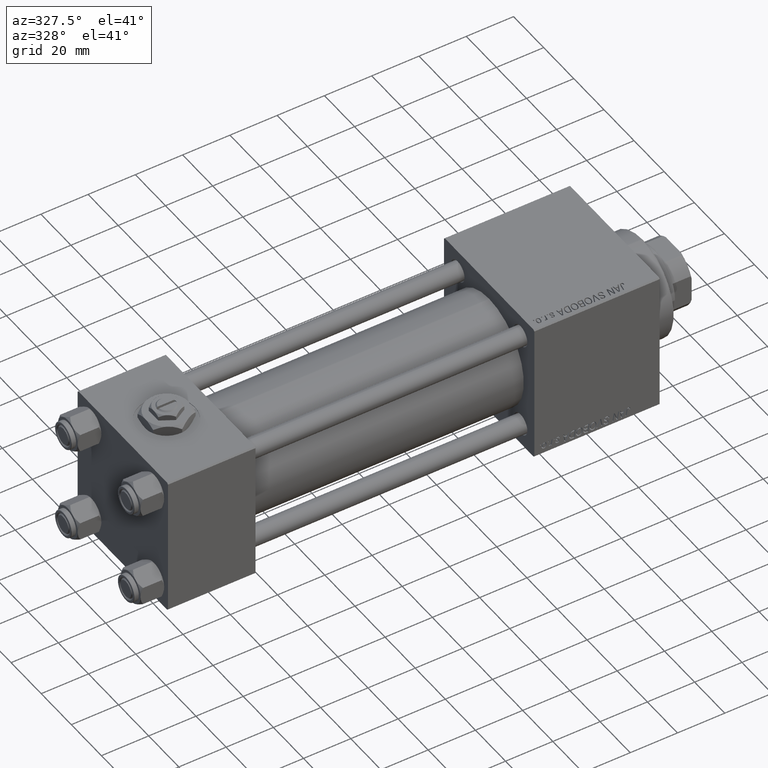
[diagram: clean part render]
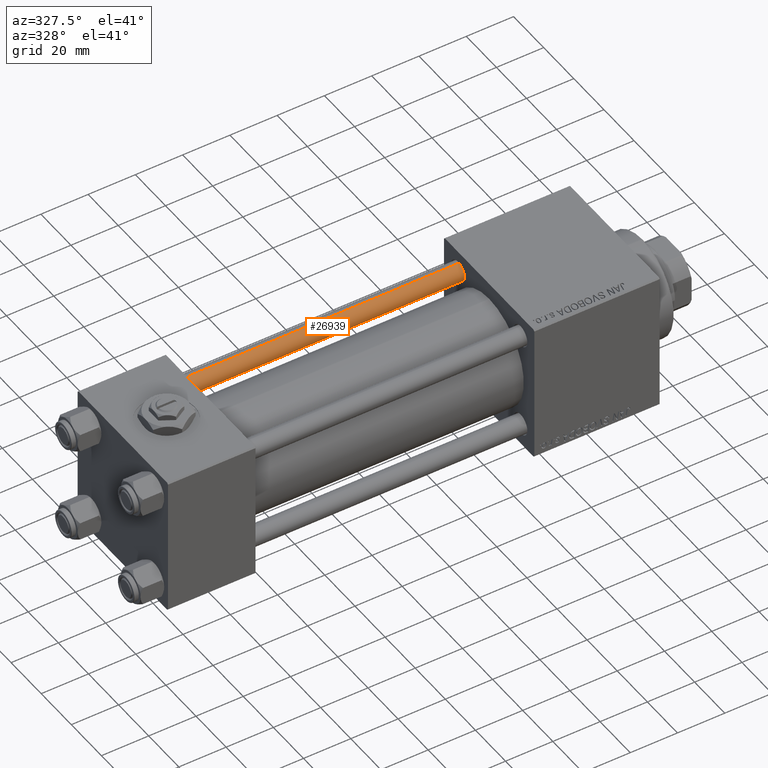
[diagram: same view with one face highlighted and labeled with its STEP entity id]
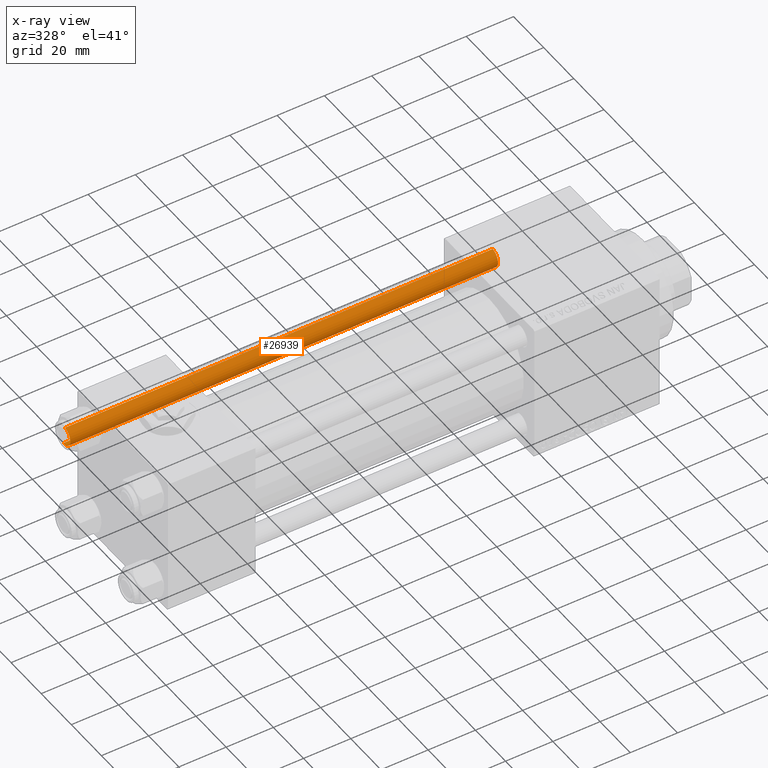
[diagram: x-ray of the same camera — body ghosted, the highlighted face saturated]
A machine part, auxiliary view. The second image highlights one B-rep face of the part: STEP entity #26939.
The next image is the same camera in x-ray: the body ghosted, the highlighted face saturated — about 0% of this face is hidden behind the body in this view.
In plain terms, the highlighted cylindrical surface (edge-blend (fillet) strip) has radius 4 mm, axis along (-1, 0, 0).
Its self-contained STEP definition (entity closure, byte-faithful):
#802 = CIRCLE ( 'NONE', #1671, 4.000000000000000000 ) ;
#1403 = ORIENTED_EDGE ( 'NONE', *, *, #46989, .T. ) ;
#1533 = EDGE_CURVE ( 'NONE', #12685, #27066, #802, .T. ) ;
#1671 = AXIS2_PLACEMENT_3D ( 'NONE', #37809, #21517, #8900 ) ;
#1825 = LINE ( 'NONE', #30196, #22193 ) ;
#5564 = CARTESIAN_POINT ( 'NONE',  ( 4.000000000000000000, 4.898587196589412829E-16, 181.5000000000000284 ) ) ;
#8417 = VERTEX_POINT ( 'NONE', #29666 ) ;
#8532 = CARTESIAN_POINT ( 'NONE',  ( -4.000000000000000000, 0.000000000000000000, 0.4999999999999726885 ) ) ;
#8900 = DIRECTION ( 'NONE',  ( 1.000000000000000000, 0.000000000000000000, 0.000000000000000000 ) ) ;
#12685 = VERTEX_POINT ( 'NONE', #8532 ) ;
#17148 = DIRECTION ( 'NONE',  ( -0.000000000000000000, -0.000000000000000000, -1.000000000000000000 ) ) ;
#17645 = AXIS2_PLACEMENT_3D ( 'NONE', #39300, #27975, #47691 ) ;
#18372 = DIRECTION ( 'NONE',  ( -0.000000000000000000, -0.000000000000000000, -1.000000000000000000 ) ) ;
#19777 = ORIENTED_EDGE ( 'NONE', *, *, #26196, .F. ) ;
#21155 = ORIENTED_EDGE ( 'NONE', *, *, #38931, .T. ) ;
#21517 = DIRECTION ( 'NONE',  ( -0.000000000000000000, -0.000000000000000000, 1.000000000000000000 ) ) ;
#22193 = VECTOR ( 'NONE', #18372, 1000.000000000000000 ) ;
#23443 = VECTOR ( 'NONE', #24534, 1000.000000000000000 ) ;
#24534 = DIRECTION ( 'NONE',  ( -0.000000000000000000, -0.000000000000000000, -1.000000000000000000 ) ) ;
#25548 = CYLINDRICAL_SURFACE ( 'NONE', #49909, 4.000000000000000000 ) ;
#26196 = EDGE_CURVE ( 'NONE', #51882, #27066, #1825, .T. ) ;
#26939 = ADVANCED_FACE ( 'NONE', ( #29493 ), #25548, .T. ) ;
#27066 = VERTEX_POINT ( 'NONE', #32265 ) ;
#27975 = DIRECTION ( 'NONE',  ( 0.000000000000000000, 0.000000000000000000, -1.000000000000000000 ) ) ;
#29493 = FACE_OUTER_BOUND ( 'NONE', #48897, .T. ) ;
#29666 = CARTESIAN_POINT ( 'NONE',  ( -4.000000000000000000, 0.000000000000000000, 181.5000000000000284 ) ) ;
#30196 = CARTESIAN_POINT ( 'NONE',  ( 4.000000000000000000, 4.898587196589412829E-16, 182.0000000000000000 ) ) ;
#32265 = CARTESIAN_POINT ( 'NONE',  ( 4.000000000000000000, 4.898587196589412829E-16, 0.4999999999999726885 ) ) ;
#32416 = LINE ( 'NONE', #48447, #23443 ) ;
#37638 = DIRECTION ( 'NONE',  ( -1.000000000000000000, 0.000000000000000000, 0.000000000000000000 ) ) ;
#37809 = CARTESIAN_POINT ( 'NONE',  ( 0.000000000000000000, 0.000000000000000000, 0.4999999999999726885 ) ) ;
#38931 = EDGE_CURVE ( 'NONE', #8417, #12685, #32416, .T. ) ;
#39300 = CARTESIAN_POINT ( 'NONE',  ( 0.000000000000000000, 0.000000000000000000, 181.5000000000000284 ) ) ;
#39443 = CIRCLE ( 'NONE', #17645, 4.000000000000000000 ) ;
#41586 = CARTESIAN_POINT ( 'NONE',  ( 0.000000000000000000, 0.000000000000000000, 182.0000000000000000 ) ) ;
#46989 = EDGE_CURVE ( 'NONE', #51882, #8417, #39443, .T. ) ;
#47691 = DIRECTION ( 'NONE',  ( 1.000000000000000000, 0.000000000000000000, 0.000000000000000000 ) ) ;
#48447 = CARTESIAN_POINT ( 'NONE',  ( -4.000000000000000000, 0.000000000000000000, 182.0000000000000000 ) ) ;
#48897 = EDGE_LOOP ( 'NONE', ( #19777, #1403, #21155, #49093 ) ) ;
#49093 = ORIENTED_EDGE ( 'NONE', *, *, #1533, .T. ) ;
#49909 = AXIS2_PLACEMENT_3D ( 'NONE', #41586, #17148, #37638 ) ;
#51882 = VERTEX_POINT ( 'NONE', #5564 ) ;